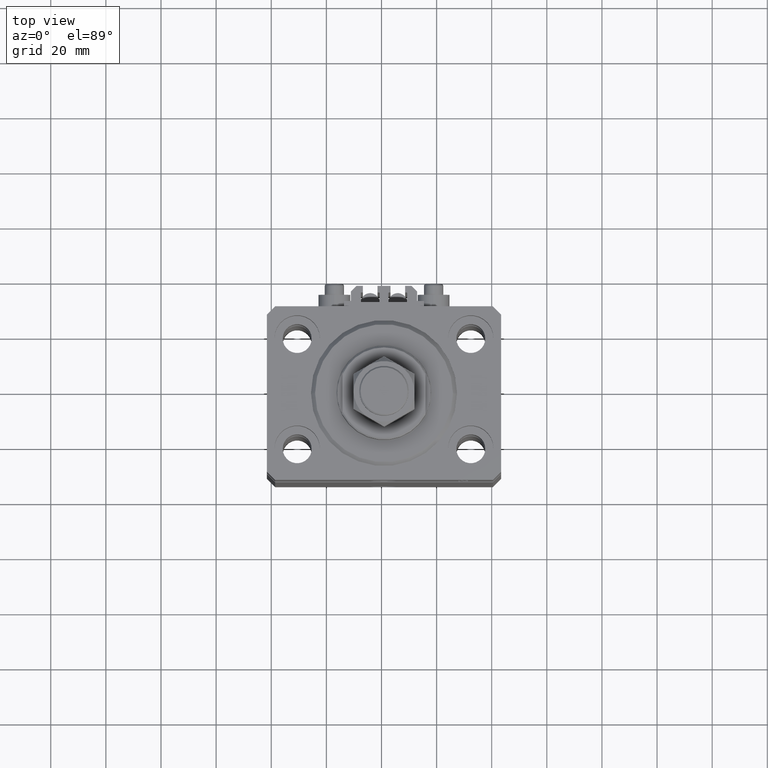
[diagram: clean part render]
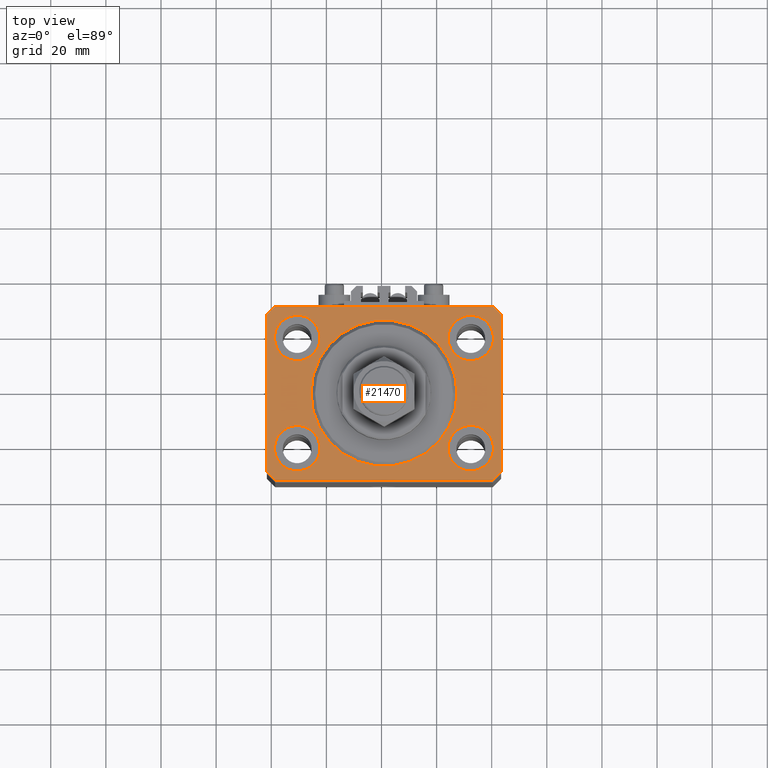
[diagram: same view with one face highlighted and labeled with its STEP entity id]
A machine part, top view. The second image highlights one B-rep face of the part: STEP entity #21470.
In plain terms, the highlighted planar face has unit normal (0, 0, 1).
Its self-contained STEP definition (entity closure, byte-faithful):
#222 = EDGE_CURVE ( 'NONE', #7681, #44494, #17884, .T. ) ;
#354 = LINE ( 'NONE', #31563, #21120 ) ;
#588 = CARTESIAN_POINT ( 'NONE',  ( -39.50000000000000711, -31.50000000000000000, 0.000000000000000000 ) ) ;
#778 = CARTESIAN_POINT ( 'NONE',  ( -42.50000000000000000, 28.50000000000000000, 0.000000000000000000 ) ) ;
#918 = CARTESIAN_POINT ( 'NONE',  ( 0.000000000000000000, 0.000000000000000000, 0.000000000000000000 ) ) ;
#967 = AXIS2_PLACEMENT_3D ( 'NONE', #44188, #43693, #9145 ) ;
#1615 = AXIS2_PLACEMENT_3D ( 'NONE', #46809, #11773, #27886 ) ;
#1983 = VERTEX_POINT ( 'NONE', #10134 ) ;
#2201 = VECTOR ( 'NONE', #13413, 1000.000000000000000 ) ;
#2540 = VERTEX_POINT ( 'NONE', #21269 ) ;
#2645 = DIRECTION ( 'NONE',  ( 0.000000000000000000, 0.000000000000000000, 1.000000000000000000 ) ) ;
#3887 = CARTESIAN_POINT ( 'NONE',  ( 31.50000000000000000, -20.00000000000000000, 0.000000000000000000 ) ) ;
#4240 = AXIS2_PLACEMENT_3D ( 'NONE', #29747, #37693, #25415 ) ;
#5842 = DIRECTION ( 'NONE',  ( 1.000000000000000000, 0.000000000000000000, 0.000000000000000000 ) ) ;
#5951 = CARTESIAN_POINT ( 'NONE',  ( 39.74999999999999289, 20.00000000000001066, 0.000000000000000000 ) ) ;
#6222 = CARTESIAN_POINT ( 'NONE',  ( -31.50000000000000000, -20.00000000000000000, 0.000000000000000000 ) ) ;
#6694 = CARTESIAN_POINT ( 'NONE',  ( 42.50000000000051870, 28.49999999999995381, 0.000000000000000000 ) ) ;
#6853 = EDGE_CURVE ( 'NONE', #25150, #10340, #27815, .T. ) ;
#7613 = FACE_BOUND ( 'NONE', #8002, .T. ) ;
#7681 = VERTEX_POINT ( 'NONE', #30527 ) ;
#7708 = VECTOR ( 'NONE', #31418, 1000.000000000000000 ) ;
#7751 = VECTOR ( 'NONE', #38680, 1000.000000000000000 ) ;
#7880 = VERTEX_POINT ( 'NONE', #588 ) ;
#8002 = EDGE_LOOP ( 'NONE', ( #21563, #40858 ) ) ;
#8078 = AXIS2_PLACEMENT_3D ( 'NONE', #39480, #19773, #26666 ) ;
#8159 = CARTESIAN_POINT ( 'NONE',  ( 42.50000000000000711, -28.50000000000000355, 0.000000000000000000 ) ) ;
#8548 = ORIENTED_EDGE ( 'NONE', *, *, #222, .F. ) ;
#9018 = VERTEX_POINT ( 'NONE', #39104 ) ;
#9145 = DIRECTION ( 'NONE',  ( 1.000000000000000000, 0.000000000000000000, 0.000000000000000000 ) ) ;
#9209 = LINE ( 'NONE', #778, #45473 ) ;
#9492 = DIRECTION ( 'NONE',  ( 1.000000000000000000, 0.000000000000000000, 0.000000000000000000 ) ) ;
#9798 = ORIENTED_EDGE ( 'NONE', *, *, #44834, .F. ) ;
#9816 = DIRECTION ( 'NONE',  ( 1.000000000000000000, 0.000000000000000000, 0.000000000000000000 ) ) ;
#9867 = EDGE_CURVE ( 'NONE', #16140, #9018, #49162, .T. ) ;
#10134 = CARTESIAN_POINT ( 'NONE',  ( -42.50000000000000000, -28.50000000000000000, 0.000000000000000000 ) ) ;
#10340 = VERTEX_POINT ( 'NONE', #50102 ) ;
#10418 = CIRCLE ( 'NONE', #47203, 26.50000000000000355 ) ;
#10912 = VERTEX_POINT ( 'NONE', #5951 ) ;
#11076 = CARTESIAN_POINT ( 'NONE',  ( -31.50000000000000000, 20.00000000000000000, 0.000000000000000000 ) ) ;
#11101 = ORIENTED_EDGE ( 'NONE', *, *, #48024, .T. ) ;
#11285 = CARTESIAN_POINT ( 'NONE',  ( 39.50000000000056843, 31.50000000000000000, 0.000000000000000000 ) ) ;
#11441 = FACE_BOUND ( 'NONE', #18195, .T. ) ;
#11773 = DIRECTION ( 'NONE',  ( 0.000000000000000000, 0.000000000000000000, 1.000000000000000000 ) ) ;
#11950 = PLANE ( 'NONE',  #49288 ) ;
#12137 = VERTEX_POINT ( 'NONE', #38848 ) ;
#12599 = DIRECTION ( 'NONE',  ( 0.000000000000000000, 0.000000000000000000, 1.000000000000000000 ) ) ;
#12685 = DIRECTION ( 'NONE',  ( 1.000000000000000000, 0.000000000000000000, 0.000000000000000000 ) ) ;
#13068 = ORIENTED_EDGE ( 'NONE', *, *, #24507, .T. ) ;
#13094 = CARTESIAN_POINT ( 'NONE',  ( -39.50000000000000711, 31.50000000000000000, 0.000000000000000000 ) ) ;
#13396 = ORIENTED_EDGE ( 'NONE', *, *, #38616, .T. ) ;
#13413 = DIRECTION ( 'NONE',  ( -0.7071067811865471286, -0.7071067811865479058, 0.000000000000000000 ) ) ;
#14203 = CARTESIAN_POINT ( 'NONE',  ( -23.25000000000000000, 20.00000000000000000, 0.000000000000000000 ) ) ;
#14779 = ORIENTED_EDGE ( 'NONE', *, *, #6853, .F. ) ;
#14892 = ORIENTED_EDGE ( 'NONE', *, *, #22712, .T. ) ;
#14945 = ORIENTED_EDGE ( 'NONE', *, *, #33937, .T. ) ;
#15931 = DIRECTION ( 'NONE',  ( 1.000000000000000000, 0.000000000000000000, 0.000000000000000000 ) ) ;
#16140 = VERTEX_POINT ( 'NONE', #27377 ) ;
#16482 = ORIENTED_EDGE ( 'NONE', *, *, #50328, .F. ) ;
#16531 = DIRECTION ( 'NONE',  ( 0.000000000000000000, 0.000000000000000000, 1.000000000000000000 ) ) ;
#17152 = CIRCLE ( 'NONE', #1615, 8.249999999999992895 ) ;
#17319 = LINE ( 'NONE', #33169, #35448 ) ;
#17884 = CIRCLE ( 'NONE', #8078, 8.249999999999992895 ) ;
#18184 = EDGE_CURVE ( 'NONE', #43049, #2540, #41102, .T. ) ;
#18195 = EDGE_LOOP ( 'NONE', ( #43108, #8548 ) ) ;
#18260 = DIRECTION ( 'NONE',  ( 1.000000000000000000, 0.000000000000000000, 0.000000000000000000 ) ) ;
#18587 = VERTEX_POINT ( 'NONE', #21246 ) ;
#19149 = EDGE_CURVE ( 'NONE', #2540, #43049, #35292, .T. ) ;
#19154 = EDGE_CURVE ( 'NONE', #10912, #26782, #26289, .T. ) ;
#19773 = DIRECTION ( 'NONE',  ( 0.000000000000000000, 0.000000000000000000, 1.000000000000000000 ) ) ;
#19892 = FACE_BOUND ( 'NONE', #47365, .T. ) ;
#21120 = VECTOR ( 'NONE', #47159, 1000.000000000000000 ) ;
#21203 = VECTOR ( 'NONE', #32778, 1000.000000000000000 ) ;
#21241 = LINE ( 'NONE', #28674, #21203 ) ;
#21246 = CARTESIAN_POINT ( 'NONE',  ( -42.50000000000000000, 28.50000000000000000, 0.000000000000000000 ) ) ;
#21269 = CARTESIAN_POINT ( 'NONE',  ( -39.75000000000000000, -20.00000000000000000, 0.000000000000000000 ) ) ;
#21470 = ADVANCED_FACE ( 'NONE', ( #31140, #11441, #27039, #19892, #7613, #23190 ), #11950, .T. ) ;
#21563 = ORIENTED_EDGE ( 'NONE', *, *, #39473, .F. ) ;
#21825 = VERTEX_POINT ( 'NONE', #13094 ) ;
#22712 = EDGE_CURVE ( 'NONE', #42322, #41667, #17319, .T. ) ;
#22785 = CIRCLE ( 'NONE', #25253, 8.249999999999992895 ) ;
#23190 = FACE_OUTER_BOUND ( 'NONE', #30061, .T. ) ;
#23347 = EDGE_CURVE ( 'NONE', #7880, #42322, #34493, .T. ) ;
#23840 = CARTESIAN_POINT ( 'NONE',  ( 39.74999999999999289, -20.00000000000000000, 0.000000000000000000 ) ) ;
#23975 = DIRECTION ( 'NONE',  ( 0.000000000000000000, 0.000000000000000000, 1.000000000000000000 ) ) ;
#24019 = ORIENTED_EDGE ( 'NONE', *, *, #19154, .F. ) ;
#24169 = CARTESIAN_POINT ( 'NONE',  ( -39.50000000000000711, 31.50000000000000000, 0.000000000000000000 ) ) ;
#24380 = AXIS2_PLACEMENT_3D ( 'NONE', #48319, #25021, #5842 ) ;
#24507 = EDGE_CURVE ( 'NONE', #9018, #21825, #46325, .T. ) ;
#24818 = CARTESIAN_POINT ( 'NONE',  ( 23.25000000000000355, 20.00000000000001066, 0.000000000000000000 ) ) ;
#24915 = LINE ( 'NONE', #24169, #2201 ) ;
#24946 = EDGE_LOOP ( 'NONE', ( #24019, #16482 ) ) ;
#25021 = DIRECTION ( 'NONE',  ( 0.000000000000000000, 0.000000000000000000, 1.000000000000000000 ) ) ;
#25150 = VERTEX_POINT ( 'NONE', #14203 ) ;
#25253 = AXIS2_PLACEMENT_3D ( 'NONE', #3887, #12599, #15931 ) ;
#25368 = AXIS2_PLACEMENT_3D ( 'NONE', #11076, #2645, #18260 ) ;
#25415 = DIRECTION ( 'NONE',  ( 1.000000000000000000, 0.000000000000000000, 0.000000000000000000 ) ) ;
#26289 = CIRCLE ( 'NONE', #4240, 8.249999999999992895 ) ;
#26410 = ORIENTED_EDGE ( 'NONE', *, *, #19149, .F. ) ;
#26666 = DIRECTION ( 'NONE',  ( 1.000000000000000000, 0.000000000000000000, 0.000000000000000000 ) ) ;
#26782 = VERTEX_POINT ( 'NONE', #24818 ) ;
#27039 = FACE_BOUND ( 'NONE', #24946, .T. ) ;
#27377 = CARTESIAN_POINT ( 'NONE',  ( 42.50000000000051870, 28.49999999999995381, 0.000000000000000000 ) ) ;
#27815 = CIRCLE ( 'NONE', #25368, 8.250000000000000000 ) ;
#27886 = DIRECTION ( 'NONE',  ( 1.000000000000000000, 0.000000000000000000, 0.000000000000000000 ) ) ;
#28114 = ORIENTED_EDGE ( 'NONE', *, *, #9867, .T. ) ;
#28429 = DIRECTION ( 'NONE',  ( 0.000000000000000000, 0.000000000000000000, 1.000000000000000000 ) ) ;
#28674 = CARTESIAN_POINT ( 'NONE',  ( -42.50000000000000000, -28.50000000000000000, 0.000000000000000000 ) ) ;
#29397 = CARTESIAN_POINT ( 'NONE',  ( 39.50000000000000711, -31.50000000000000000, 0.000000000000000000 ) ) ;
#29509 = AXIS2_PLACEMENT_3D ( 'NONE', #39967, #28429, #9492 ) ;
#29747 = CARTESIAN_POINT ( 'NONE',  ( 31.50000000000000000, 20.00000000000001066, 0.000000000000000000 ) ) ;
#30061 = EDGE_LOOP ( 'NONE', ( #13068, #14945, #30626, #13396, #41826, #14892, #11101, #28114 ) ) ;
#30527 = CARTESIAN_POINT ( 'NONE',  ( 23.25000000000000355, -20.00000000000000000, 0.000000000000000000 ) ) ;
#30626 = ORIENTED_EDGE ( 'NONE', *, *, #40537, .T. ) ;
#31140 = FACE_BOUND ( 'NONE', #44165, .T. ) ;
#31395 = DIRECTION ( 'NONE',  ( 1.000000000000000000, 0.000000000000000000, -0.000000000000000000 ) ) ;
#31418 = DIRECTION ( 'NONE',  ( 1.000000000000000000, 0.000000000000000000, 0.000000000000000000 ) ) ;
#31563 = CARTESIAN_POINT ( 'NONE',  ( 42.50000000000000711, -28.50000000000000355, 0.000000000000000000 ) ) ;
#32778 = DIRECTION ( 'NONE',  ( 0.7071067811865471286, -0.7071067811865479058, 0.000000000000000000 ) ) ;
#33169 = CARTESIAN_POINT ( 'NONE',  ( 39.50000000000000711, -31.50000000000000000, 0.000000000000000000 ) ) ;
#33370 = CIRCLE ( 'NONE', #24380, 8.250000000000000000 ) ;
#33937 = EDGE_CURVE ( 'NONE', #21825, #18587, #24915, .T. ) ;
#34059 = DIRECTION ( 'NONE',  ( -0.7071067811865356934, 0.7071067811865594521, 0.000000000000000000 ) ) ;
#34493 = LINE ( 'NONE', #43696, #7708 ) ;
#34981 = CARTESIAN_POINT ( 'NONE',  ( 0.000000000000000000, 0.000000000000000000, 0.000000000000000000 ) ) ;
#35292 = CIRCLE ( 'NONE', #45892, 8.250000000000000000 ) ;
#35448 = VECTOR ( 'NONE', #44183, 1000.000000000000000 ) ;
#35585 = VERTEX_POINT ( 'NONE', #43604 ) ;
#37439 = DIRECTION ( 'NONE',  ( 0.000000000000000000, 0.000000000000000000, 1.000000000000000000 ) ) ;
#37693 = DIRECTION ( 'NONE',  ( 0.000000000000000000, 0.000000000000000000, 1.000000000000000000 ) ) ;
#38227 = ORIENTED_EDGE ( 'NONE', *, *, #18184, .F. ) ;
#38616 = EDGE_CURVE ( 'NONE', #1983, #7880, #21241, .T. ) ;
#38680 = DIRECTION ( 'NONE',  ( -1.000000000000000000, 0.000000000000000000, 0.000000000000000000 ) ) ;
#38848 = CARTESIAN_POINT ( 'NONE',  ( 26.50000000000000355, 0.000000000000000000, 0.000000000000000000 ) ) ;
#39104 = CARTESIAN_POINT ( 'NONE',  ( 39.50000000000056843, 31.50000000000000000, 0.000000000000000000 ) ) ;
#39473 = EDGE_CURVE ( 'NONE', #12137, #35585, #45024, .T. ) ;
#39480 = CARTESIAN_POINT ( 'NONE',  ( 31.50000000000000000, -20.00000000000000000, 0.000000000000000000 ) ) ;
#39967 = CARTESIAN_POINT ( 'NONE',  ( 0.000000000000000000, 0.000000000000000000, 0.000000000000000000 ) ) ;
#40537 = EDGE_CURVE ( 'NONE', #18587, #1983, #9209, .T. ) ;
#40858 = ORIENTED_EDGE ( 'NONE', *, *, #42129, .F. ) ;
#41102 = CIRCLE ( 'NONE', #967, 8.250000000000000000 ) ;
#41667 = VERTEX_POINT ( 'NONE', #8159 ) ;
#41826 = ORIENTED_EDGE ( 'NONE', *, *, #23347, .T. ) ;
#42129 = EDGE_CURVE ( 'NONE', #35585, #12137, #10418, .T. ) ;
#42322 = VERTEX_POINT ( 'NONE', #29397 ) ;
#43049 = VERTEX_POINT ( 'NONE', #50234 ) ;
#43108 = ORIENTED_EDGE ( 'NONE', *, *, #45322, .F. ) ;
#43604 = CARTESIAN_POINT ( 'NONE',  ( -26.50000000000000355, 3.245314017740485765E-15, 0.000000000000000000 ) ) ;
#43693 = DIRECTION ( 'NONE',  ( 0.000000000000000000, 0.000000000000000000, 1.000000000000000000 ) ) ;
#43696 = CARTESIAN_POINT ( 'NONE',  ( -39.50000000000000711, -31.50000000000000000, 0.000000000000000000 ) ) ;
#44165 = EDGE_LOOP ( 'NONE', ( #38227, #26410 ) ) ;
#44183 = DIRECTION ( 'NONE',  ( 0.7071067811865483499, 0.7071067811865466846, 0.000000000000000000 ) ) ;
#44188 = CARTESIAN_POINT ( 'NONE',  ( -31.50000000000000000, -20.00000000000000000, 0.000000000000000000 ) ) ;
#44494 = VERTEX_POINT ( 'NONE', #23840 ) ;
#44834 = EDGE_CURVE ( 'NONE', #10340, #25150, #33370, .T. ) ;
#45024 = CIRCLE ( 'NONE', #29509, 26.50000000000000355 ) ;
#45322 = EDGE_CURVE ( 'NONE', #44494, #7681, #22785, .T. ) ;
#45473 = VECTOR ( 'NONE', #47590, 1000.000000000000000 ) ;
#45892 = AXIS2_PLACEMENT_3D ( 'NONE', #6222, #37439, #9816 ) ;
#46325 = LINE ( 'NONE', #11285, #7751 ) ;
#46809 = CARTESIAN_POINT ( 'NONE',  ( 31.50000000000000000, 20.00000000000001066, 0.000000000000000000 ) ) ;
#47159 = DIRECTION ( 'NONE',  ( 8.886653596232072440E-15, 1.000000000000000000, 0.000000000000000000 ) ) ;
#47203 = AXIS2_PLACEMENT_3D ( 'NONE', #918, #16531, #12685 ) ;
#47365 = EDGE_LOOP ( 'NONE', ( #14779, #9798 ) ) ;
#47590 = DIRECTION ( 'NONE',  ( 0.000000000000000000, -1.000000000000000000, 0.000000000000000000 ) ) ;
#48024 = EDGE_CURVE ( 'NONE', #41667, #16140, #354, .T. ) ;
#48319 = CARTESIAN_POINT ( 'NONE',  ( -31.50000000000000000, 20.00000000000000000, 0.000000000000000000 ) ) ;
#49162 = LINE ( 'NONE', #6694, #49962 ) ;
#49288 = AXIS2_PLACEMENT_3D ( 'NONE', #34981, #23975, #31395 ) ;
#49962 = VECTOR ( 'NONE', #34059, 1000.000000000000114 ) ;
#50102 = CARTESIAN_POINT ( 'NONE',  ( -39.75000000000000000, 20.00000000000000000, 0.000000000000000000 ) ) ;
#50234 = CARTESIAN_POINT ( 'NONE',  ( -23.25000000000000000, -20.00000000000000000, 0.000000000000000000 ) ) ;
#50328 = EDGE_CURVE ( 'NONE', #26782, #10912, #17152, .T. ) ;